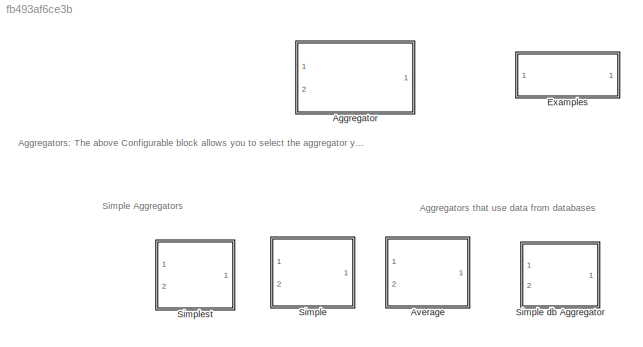
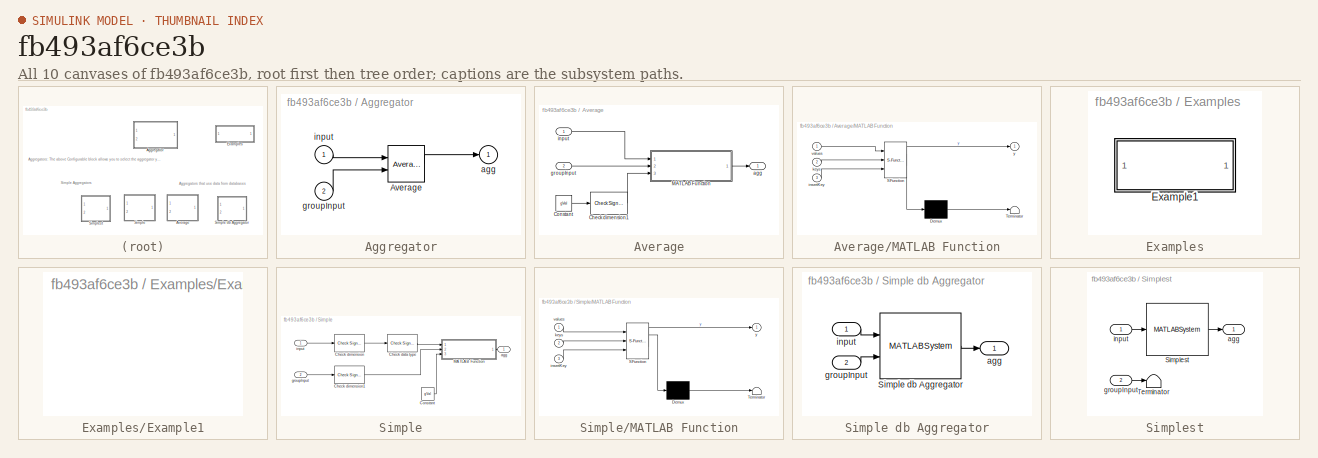
[diagram: thumbnail index - all 10 canvases of the model, root first then tree order]
MODEL slx_fb493af6ce3b
KIND library
CONFIG AbsTol = auto
CONFIG FixedStep = auto
CONFIG MaxStep = auto
CONFIG MinStep = auto
CONFIG RelTol = 1e-3
CONFIG SampleTimeConstraint = Unconstrained
CONFIG Solver = ode45
CONFIG SolverMode = Auto
CONFIG SolverName = ode45
CONFIG StartTime = 0.0
CONFIG StopTime = 10.0
BLOCK [SubSystem] Aggregator
  BlockChoice = Average
  MemberBlocks = Average,Simple,Simple db Aggregator,Simplest
  Ports = [2, 1]
  RequestExecContextInheritance = off
  TemplateBlock = self
BLOCK [Reference] Aggregator/Average  REF=libAggregators/Average
  Ports = [2, 1]
  SourceBlock = libAggregators/Average
  SourceType = aggregatingBlock
  gVal = 1
BLOCK [Outport] Aggregator/agg
  IconDisplay = Port number
BLOCK [Inport] Aggregator/groupInput
  IconDisplay = Port number
  Port = 2
BLOCK [Inport] Aggregator/input
  IconDisplay = Port number
BLOCK [SubSystem] Average
  Ports = [2, 1]
  RTWFcnNameOpts = Use subsystem name
  RTWFileNameOpts = Use function name
  RTWSystemCode = Reusable function
  RequestExecContextInheritance = off
BLOCK [Reference] Average/Check dimension1  REF=dspsigattribs/Check Signal
Attributes
  Complexity = Ignore
  DatatypeCheckMethod = Ignore
  DatatypeGeneral = Floating-point
  Dimensions = Vector (1-D or 2-D)
  DimsCheckMethod = Is...
  DtypeFixedSpecific = Any fixed-point
  DtypeFloatSpecific = Any floating-point
  DtypeIntSpecific = Any integer
  Frame = Ignore
  Ports = [1, 1]
  SampleMode = Ignore
  SigAttribCheckMethod = Does not match attributes exactly
  SourceBlock = dspsigattribs/Check Signal\nAttributes
  SourceType = Check Signal Attributes
BLOCK [Constant] Average/Constant
  Value = gVal
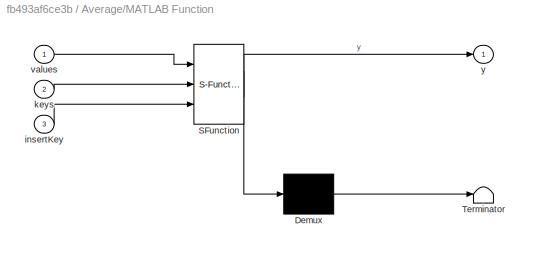
BLOCK [SubSystem] Average/MATLAB Function
  ErrorFcn = Stateflow.Translate.translate
  PermitHierarchicalResolution = ExplicitOnly
  Ports = [3, 1]
  RTWSystemCode = Inline
  RequestExecContextInheritance = off
  SFBlockType = MATLAB Function
  TreatAsAtomicUnit = on
BLOCK [Demux] Average/MATLAB Function/ Demux 
  Outputs = 1
  Ports = [1, 1]
BLOCK [S-Function] Average/MATLAB Function/ SFunction 
  FunctionName = sf_sfun
  PortCounts = [3 2]
  Ports = [3, 2]
  Tag = Stateflow S-Function libAggregators 1
BLOCK [Terminator] Average/MATLAB Function/ Terminator 
BLOCK [Inport] Average/MATLAB Function/insertKey
  IconDisplay = Port number
  Port = 3
BLOCK [Inport] Average/MATLAB Function/keys
  IconDisplay = Port number
  Port = 2
BLOCK [Inport] Average/MATLAB Function/values
  IconDisplay = Port number
BLOCK [Outport] Average/MATLAB Function/y
  IconDisplay = Port number
BLOCK [Outport] Average/agg
  IconDisplay = Port number
BLOCK [Inport] Average/groupInput
  IconDisplay = Port number
  Port = 2
BLOCK [Inport] Average/input
  IconDisplay = Port number
BLOCK [SubSystem] Examples
  Ports = []
  RequestExecContextInheritance = off
BLOCK [SubSystem] Examples/Example1
  OpenFcn = read_simulated_unitIDs_example
  Ports = []
  RequestExecContextInheritance = off
BLOCK [SubSystem] Simple
  Ports = [2, 1]
  RequestExecContextInheritance = off
BLOCK [SubSystem] Simple db Aggregator
  Ports = [2, 1]
  RequestExecContextInheritance = off
BLOCK [MATLABSystem] Simple db Aggregator/Simple db Aggregator
  MaskDisplay = disp('db_Aggregator_mtlbSysBlock');\nport_label('input',1,'input');\nport_label('input',2,'gropuInput');\nport_label('output',1,'agg');
  MaskType = db_Aggregator_mtlbSysBlock
  Ports = [2, 1]
  System = db_Aggregator_mtlbSysBlock
BLOCK [Outport] Simple db Aggregator/agg
  IconDisplay = Port number
BLOCK [Inport] Simple db Aggregator/groupInput
  IconDisplay = Port number
  Port = 2
BLOCK [Inport] Simple db Aggregator/input
  IconDisplay = Port number
BLOCK [Reference] Simple/Check data type  REF=dspsigattribs/Check Signal
Attributes
  Complexity = Ignore
  DatatypeCheckMethod = Is...
  DatatypeGeneral = Floating-point
  Dimensions = Full matrix (2-D)
  DimsCheckMethod = Ignore
  DtypeFixedSpecific = Any fixed-point
  DtypeFloatSpecific = Double precision
  DtypeIntSpecific = Any integer
  Frame = Ignore
  Ports = [1, 1]
  SampleMode = Ignore
  SigAttribCheckMethod = Does not match attributes exactly
  SourceBlock = dspsigattribs/Check Signal\nAttributes
  SourceType = Check Signal Attributes
BLOCK [Reference] Simple/Check dimension  REF=dspsigattribs/Check Signal
Attributes
  Complexity = Ignore
  DatatypeCheckMethod = Ignore
  DatatypeGeneral = Floating-point
  Dimensions = Vector (1-D or 2-D)
  DimsCheckMethod = Is...
  DtypeFixedSpecific = Any fixed-point
  DtypeFloatSpecific = Any floating-point
  DtypeIntSpecific = Any integer
  Frame = Ignore
  Ports = [1, 1]
  SampleMode = Ignore
  SigAttribCheckMethod = Does not match attributes exactly
  SourceBlock = dspsigattribs/Check Signal\nAttributes
  SourceType = Check Signal Attributes
BLOCK [Reference] Simple/Check dimension1  REF=dspsigattribs/Check Signal
Attributes
  Complexity = Ignore
  DatatypeCheckMethod = Ignore
  DatatypeGeneral = Floating-point
  Dimensions = Vector (1-D or 2-D)
  DimsCheckMethod = Is...
  DtypeFixedSpecific = Any fixed-point
  DtypeFloatSpecific = Any floating-point
  DtypeIntSpecific = Any integer
  Frame = Ignore
  Ports = [1, 1]
  SampleMode = Ignore
  SigAttribCheckMethod = Does not match attributes exactly
  SourceBlock = dspsigattribs/Check Signal\nAttributes
  SourceType = Check Signal Attributes
BLOCK [Constant] Simple/Constant
  Value = gVal
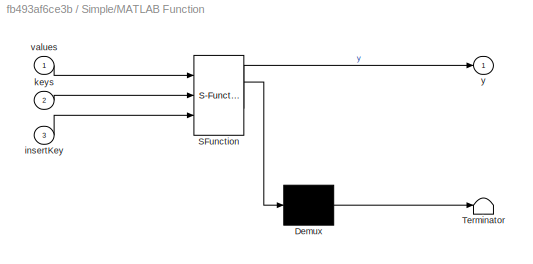
BLOCK [SubSystem] Simple/MATLAB Function
  ErrorFcn = Stateflow.Translate.translate
  PermitHierarchicalResolution = ExplicitOnly
  Ports = [3, 1]
  RTWSystemCode = Inline
  RequestExecContextInheritance = off
  SFBlockType = MATLAB Function
  TreatAsAtomicUnit = on
BLOCK [Demux] Simple/MATLAB Function/ Demux 
  Outputs = 1
  Ports = [1, 1]
BLOCK [S-Function] Simple/MATLAB Function/ SFunction 
  FunctionName = sf_sfun
  PortCounts = [3 2]
  Ports = [3, 2]
  Tag = Stateflow S-Function libAggregators 2
BLOCK [Terminator] Simple/MATLAB Function/ Terminator 
BLOCK [Inport] Simple/MATLAB Function/insertKey
  IconDisplay = Port number
  Port = 3
BLOCK [Inport] Simple/MATLAB Function/keys
  IconDisplay = Port number
  Port = 2
BLOCK [Inport] Simple/MATLAB Function/values
  IconDisplay = Port number
BLOCK [Outport] Simple/MATLAB Function/y
  IconDisplay = Port number
BLOCK [Outport] Simple/agg
  IconDisplay = Port number
BLOCK [Inport] Simple/groupInput
  IconDisplay = Port number
  Port = 2
BLOCK [Inport] Simple/input
  IconDisplay = Port number
BLOCK [SubSystem] Simplest
  Ports = [2, 1]
  RequestExecContextInheritance = off
BLOCK [MATLABSystem] Simplest/Simplest
  MaskDisplay = disp('Simplest');\nport_label('input',1,'u');\nport_label('output',1,'agg');
  MaskType = simplestAggregator_mtlbSysBlock
  Ports = [1, 1]
  System = simplestAggregator_mtlbSysBlock
BLOCK [Terminator] Simplest/Terminator
BLOCK [Outport] Simplest/agg
  IconDisplay = Port number
BLOCK [Inport] Simplest/groupInput
  IconDisplay = Port number
  Port = 2
BLOCK [Inport] Simplest/input
  IconDisplay = Port number
ANNOTATION (root): Aggregators: The above Configurable block allows you to select the aggregator you can use in your design.
ANNOTATION (root): Aggregators that use data from databases
ANNOTATION (root): Simple Aggregators
LINE Aggregator/Average:1 -> Aggregator/agg:1
LINE Aggregator/groupInput:1 -> Aggregator/Average:2
LINE Aggregator/input:1 -> Aggregator/Average:1
LINE Average/Check dimension1:1 -> Average/MATLAB Function:3
LINE Average/Constant:1 -> Average/Check dimension1:1
LINE Average/MATLAB Function:1 -> Average/agg:1
LINE Average/groupInput:1 -> Average/MATLAB Function:2
LINE Average/input:1 -> Average/MATLAB Function:1
LINE Simple db Aggregator/Simple db Aggregator:1 -> Simple db Aggregator/agg:1
LINE Simple db Aggregator/groupInput:1 -> Simple db Aggregator/Simple db Aggregator:2
LINE Simple db Aggregator/input:1 -> Simple db Aggregator/Simple db Aggregator:1
LINE Simple/Check data type:1 -> Simple/MATLAB Function:1
LINE Simple/Check dimension1:1 -> Simple/MATLAB Function:2
LINE Simple/Check dimension:1 -> Simple/Check data type:1
LINE Simple/Constant:1 -> Simple/MATLAB Function:3
LINE Simple/MATLAB Function:1 -> Simple/agg:1
LINE Simple/groupInput:1 -> Simple/Check dimension1:1
LINE Simple/input:1 -> Simple/Check dimension:1
LINE Simplest/Simplest:1 -> Simplest/agg:1
LINE Simplest/groupInput:1 -> Simplest/Terminator:1
LINE Simplest/input:1 -> Simplest/Simplest:1
CHART Average/MATLAB Function states=1 transitions=1
  STATE_LABEL 'eML_blk_kernel()'
  STATE_LABEL 'SCRIPT:\nfunction y = avgAggr(values, keys, insertKey)\n%#codegen\nindex = keys == insertKey;\ny = mean(values(index));'
CHART Simple/MATLAB Function states=1 transitions=1
  STATE_LABEL 'eML_blk_kernel()'
  STATE_LABEL 'SCRIPT:\nfunction y = sumAggr(values, keys, insertKey)\n%#codegen\nindex = keys == insertKey;\ny = sum(values(index));'
